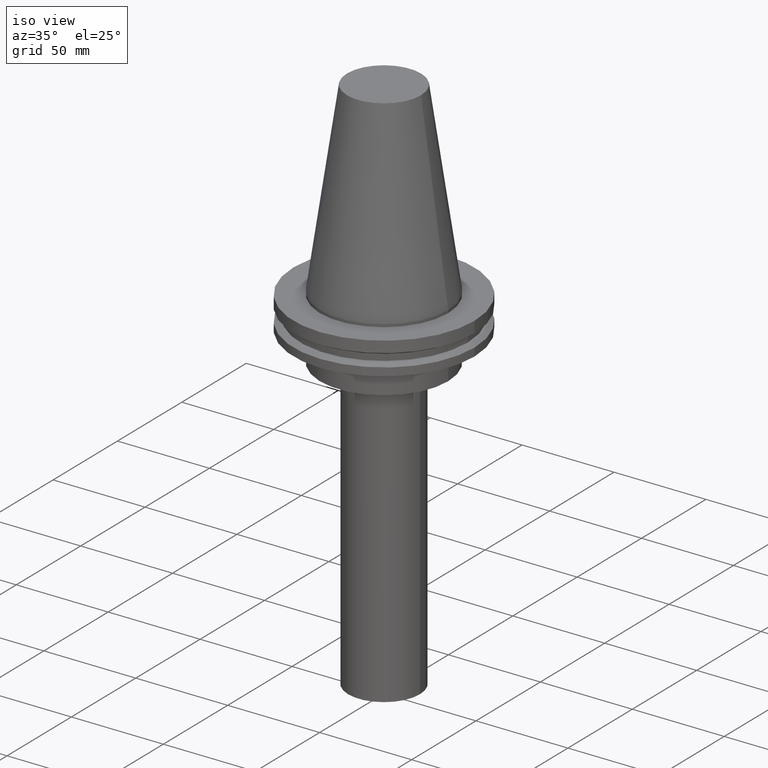
[diagram: clean part render]
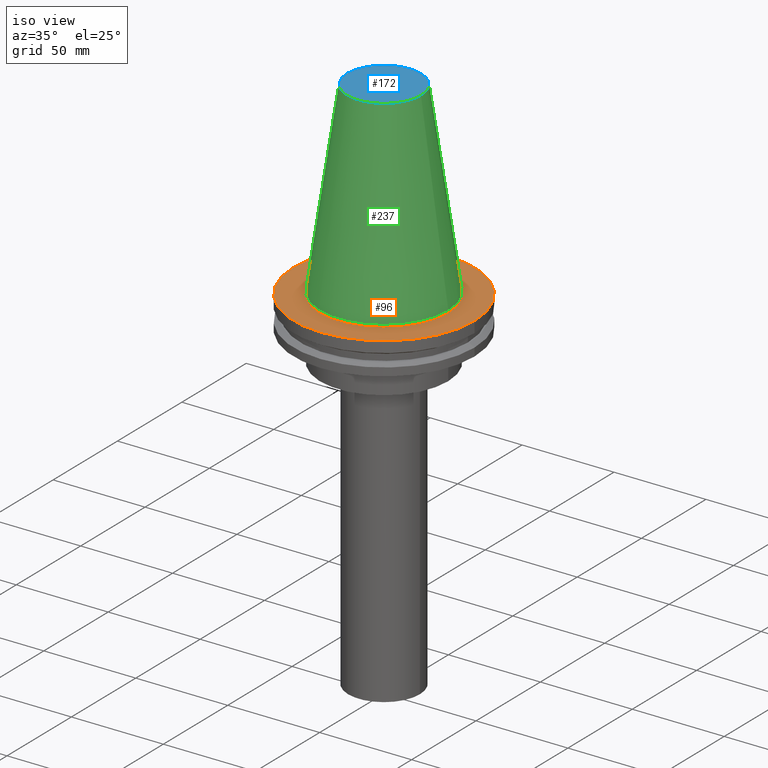
[diagram: same view with three faces highlighted in distinct colors, each labeled with its STEP entity id]
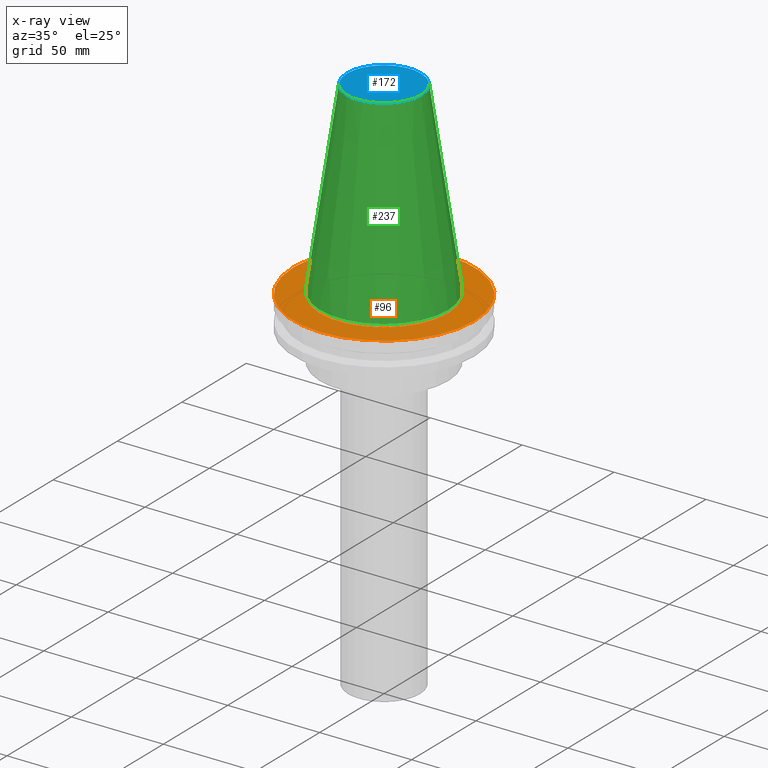
[diagram: x-ray of the same camera — body ghosted, the three highlighted faces saturated]
A machine part, iso view with three faces highlighted in distinct colors.
The next image is the same camera in x-ray (body ghosted, the three faces saturated) — at least one of them is partly hidden behind the body in this view.
Their STEP definitions:

[orange] entity #96 — the highlighted planar face has unit normal (0, 0, -1).
#2 = DIRECTION ( 'NONE',  ( -0.000000000000000000, -0.000000000000000000, 1.000000000000000000 ) ) ;
#23 = DIRECTION ( 'NONE',  ( 1.000000000000000000, 0.000000000000000000, 0.000000000000000000 ) ) ;
#25 = CARTESIAN_POINT ( 'NONE',  ( 0.000000000000000000, 49.21499999999999631, -1.499999999999992895 ) ) ;
#31 = CARTESIAN_POINT ( 'NONE',  ( 0.000000000000000000, 0.000000000000000000, -1.499999999999987566 ) ) ;
#37 = EDGE_LOOP ( 'NONE', ( #193 ) ) ;
#58 = FACE_BOUND ( 'NONE', #37, .T. ) ;
#94 = CARTESIAN_POINT ( 'NONE',  ( 0.000000000000000000, 0.000000000000000000, -1.499999999999987566 ) ) ;
#96 = ADVANCED_FACE ( 'NONE', ( #58, #180 ), #300, .F. ) ;
#134 = EDGE_CURVE ( 'NONE', #260, #260, #267, .T. ) ;
#143 = VERTEX_POINT ( 'NONE', #149 ) ;
#149 = CARTESIAN_POINT ( 'NONE',  ( 49.21499999999999631, 0.000000000000000000, -1.499999999999987566 ) ) ;
#159 = ORIENTED_EDGE ( 'NONE', *, *, #290, .T. ) ;
#180 = FACE_OUTER_BOUND ( 'NONE', #252, .T. ) ;
#187 = CIRCLE ( 'NONE', #386, 49.21499999999999631 ) ;
#193 = ORIENTED_EDGE ( 'NONE', *, *, #134, .F. ) ;
#242 = DIRECTION ( 'NONE',  ( 1.000000000000000000, 0.000000000000000000, 0.000000000000000000 ) ) ;
#243 = AXIS2_PLACEMENT_3D ( 'NONE', #31, #2, #242 ) ;
#248 = AXIS2_PLACEMENT_3D ( 'NONE', #25, #336, #365 ) ;
#252 = EDGE_LOOP ( 'NONE', ( #159 ) ) ;
#260 = VERTEX_POINT ( 'NONE', #268 ) ;
#267 = CIRCLE ( 'NONE', #243, 34.92499999999999005 ) ;
#268 = CARTESIAN_POINT ( 'NONE',  ( 34.92499999999999005, 0.000000000000000000, -1.499999999999987566 ) ) ;
#290 = EDGE_CURVE ( 'NONE', #143, #143, #187, .T. ) ;
#300 = PLANE ( 'NONE',  #248 ) ;
#336 = DIRECTION ( 'NONE',  ( 0.000000000000000000, 0.000000000000000000, -1.000000000000000000 ) ) ;
#362 = DIRECTION ( 'NONE',  ( -0.000000000000000000, -0.000000000000000000, 1.000000000000000000 ) ) ;
#365 = DIRECTION ( 'NONE',  ( -1.000000000000000000, 0.000000000000000000, -0.000000000000000000 ) ) ;
#386 = AXIS2_PLACEMENT_3D ( 'NONE', #94, #362, #23 ) ;

[blue] entity #172 — the highlighted planar face has unit normal (0, 0, -1).
#30 = DIRECTION ( 'NONE',  ( -0.000000000000000000, -0.000000000000000000, 1.000000000000000000 ) ) ;
#57 = AXIS2_PLACEMENT_3D ( 'NONE', #395, #30, #158 ) ;
#74 = AXIS2_PLACEMENT_3D ( 'NONE', #278, #254, #100 ) ;
#77 = VERTEX_POINT ( 'NONE', #389 ) ;
#99 = EDGE_LOOP ( 'NONE', ( #101 ) ) ;
#100 = DIRECTION ( 'NONE',  ( -1.000000000000000000, 0.000000000000000000, -0.000000000000000000 ) ) ;
#101 = ORIENTED_EDGE ( 'NONE', *, *, #345, .T. ) ;
#158 = DIRECTION ( 'NONE',  ( 1.000000000000000000, 0.000000000000000000, 0.000000000000000000 ) ) ;
#172 = ADVANCED_FACE ( 'NONE', ( #196 ), #247, .F. ) ;
#183 = CIRCLE ( 'NONE', #57, 20.10819343178871321 ) ;
#196 = FACE_OUTER_BOUND ( 'NONE', #99, .T. ) ;
#247 = PLANE ( 'NONE',  #74 ) ;
#254 = DIRECTION ( 'NONE',  ( 0.000000000000000000, 0.000000000000000000, -1.000000000000000000 ) ) ;
#278 = CARTESIAN_POINT ( 'NONE',  ( 0.000000000000000000, 20.10819343178871321, 101.5999999999999943 ) ) ;
#345 = EDGE_CURVE ( 'NONE', #77, #77, #183, .T. ) ;
#389 = CARTESIAN_POINT ( 'NONE',  ( 20.10819343178871321, 0.000000000000000000, 101.5999999999999801 ) ) ;
#395 = CARTESIAN_POINT ( 'NONE',  ( 0.000000000000000000, 0.000000000000000000, 101.5999999999999801 ) ) ;

[green] entity #237 — the highlighted conical surface has half-angle 8.297 deg.
#11 = DIRECTION ( 'NONE',  ( -1.000000000000000000, 0.000000000000000000, 0.000000000000000000 ) ) ;
#29 = AXIS2_PLACEMENT_3D ( 'NONE', #164, #167, #11 ) ;
#30 = DIRECTION ( 'NONE',  ( -0.000000000000000000, -0.000000000000000000, 1.000000000000000000 ) ) ;
#39 = ORIENTED_EDGE ( 'NONE', *, *, #345, .F. ) ;
#48 = CARTESIAN_POINT ( 'NONE',  ( 0.000000000000000000, 0.000000000000000000, 0.000000000000000000 ) ) ;
#57 = AXIS2_PLACEMENT_3D ( 'NONE', #395, #30, #158 ) ;
#77 = VERTEX_POINT ( 'NONE', #389 ) ;
#83 = VERTEX_POINT ( 'NONE', #295 ) ;
#135 = EDGE_LOOP ( 'NONE', ( #188 ) ) ;
#157 = AXIS2_PLACEMENT_3D ( 'NONE', #48, #203, #289 ) ;
#158 = DIRECTION ( 'NONE',  ( 1.000000000000000000, 0.000000000000000000, 0.000000000000000000 ) ) ;
#164 = CARTESIAN_POINT ( 'NONE',  ( 0.000000000000000000, 0.000000000000000000, 0.000000000000000000 ) ) ;
#167 = DIRECTION ( 'NONE',  ( 0.000000000000000000, 0.000000000000000000, -1.000000000000000000 ) ) ;
#183 = CIRCLE ( 'NONE', #57, 20.10819343178871321 ) ;
#188 = ORIENTED_EDGE ( 'NONE', *, *, #261, .T. ) ;
#190 = EDGE_LOOP ( 'NONE', ( #39 ) ) ;
#203 = DIRECTION ( 'NONE',  ( -0.000000000000000000, -0.000000000000000000, 1.000000000000000000 ) ) ;
#218 = FACE_OUTER_BOUND ( 'NONE', #135, .T. ) ;
#237 = ADVANCED_FACE ( 'NONE', ( #316, #218 ), #327, .T. ) ;
#261 = EDGE_CURVE ( 'NONE', #83, #83, #320, .T. ) ;
#289 = DIRECTION ( 'NONE',  ( 1.000000000000000000, 0.000000000000000000, 0.000000000000000000 ) ) ;
#295 = CARTESIAN_POINT ( 'NONE',  ( 34.92499999999999005, 0.000000000000000000, 0.000000000000000000 ) ) ;
#316 = FACE_BOUND ( 'NONE', #190, .T. ) ;
#320 = CIRCLE ( 'NONE', #157, 34.92499999999999005 ) ;
#327 = CONICAL_SURFACE ( 'NONE', #29, 34.92499999999999005, 0.1448138465474119452 ) ;
#345 = EDGE_CURVE ( 'NONE', #77, #77, #183, .T. ) ;
#389 = CARTESIAN_POINT ( 'NONE',  ( 20.10819343178871321, 0.000000000000000000, 101.5999999999999801 ) ) ;
#395 = CARTESIAN_POINT ( 'NONE',  ( 0.000000000000000000, 0.000000000000000000, 101.5999999999999801 ) ) ;